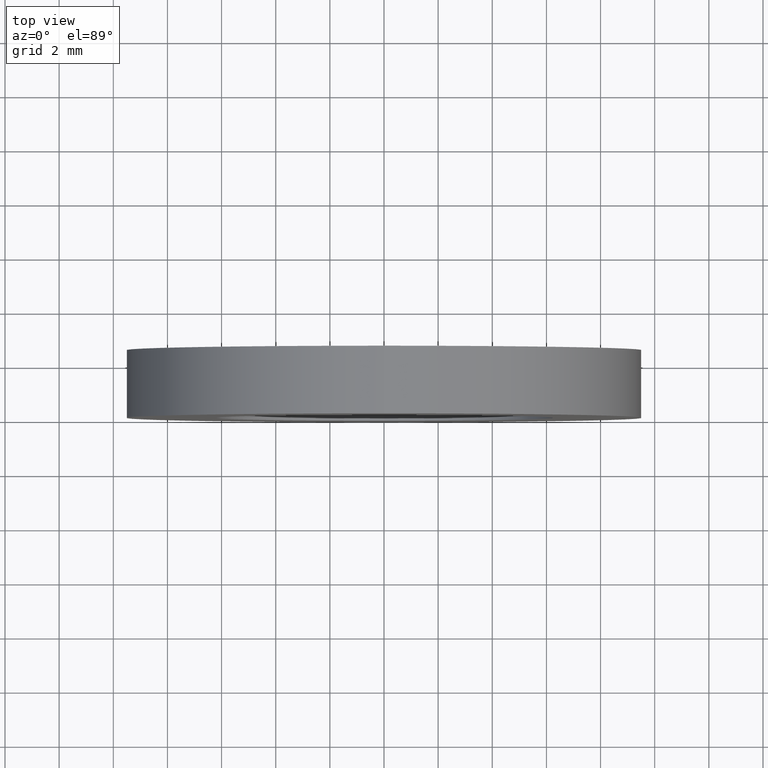
[diagram: clean part render]
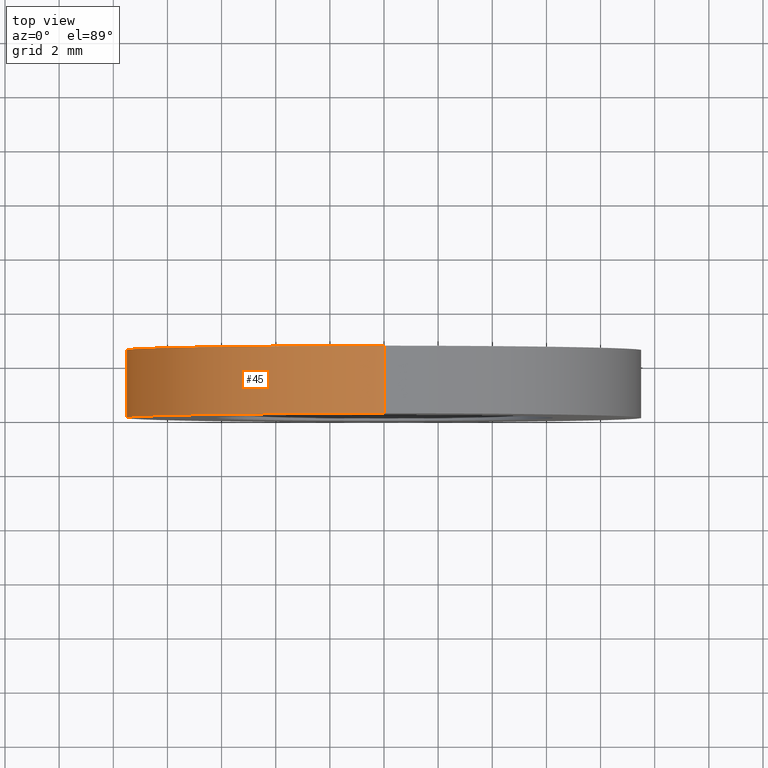
[diagram: same view with one face highlighted and labeled with its STEP entity id]
A machine part, top view. The second image highlights one B-rep face of the part: STEP entity #45.
In plain terms, the highlighted cylindrical surface (partial cylindrical patch) has radius 9.525 mm, axis along (-0, 1, -0).
Its self-contained STEP definition (entity closure, byte-faithful):
#1 = DIRECTION ( 'NONE',  ( 0.0000000000000000000, 0.0000000000000000000, 1.000000000000000000 ) ) ;
#7 = CARTESIAN_POINT ( 'NONE',  ( 1.166476076187855000E-015, 2.500000000000002200, -9.525000000000009200 ) ) ;
#8 = DIRECTION ( 'NONE',  ( 0.0000000000000000000, 0.0000000000000000000, 1.000000000000000000 ) ) ;
#9 = VERTEX_POINT ( 'NONE', #234 ) ;
#10 = CIRCLE ( 'NONE', #111, 9.525000000000009200 ) ;
#12 = VERTEX_POINT ( 'NONE', #137 ) ;
#14 = DIRECTION ( 'NONE',  ( 0.0000000000000000000, 0.0000000000000000000, 1.000000000000000000 ) ) ;
#18 = DIRECTION ( 'NONE',  ( -0.0000000000000000000, 1.000000000000000000, -0.0000000000000000000 ) ) ;
#22 = ORIENTED_EDGE ( 'NONE', *, *, #178, .T. ) ;
#33 = CYLINDRICAL_SURFACE ( 'NONE', #37, 9.525000000000009200 ) ;
#35 = DIRECTION ( 'NONE',  ( -0.0000000000000000000, 1.000000000000000000, -0.0000000000000000000 ) ) ;
#37 = AXIS2_PLACEMENT_3D ( 'NONE', #83, #100, #8 ) ;
#45 = ADVANCED_FACE ( 'NONE', ( #187 ), #33, .T. ) ;
#47 = DIRECTION ( 'NONE',  ( -0.0000000000000000000, 1.000000000000000000, -0.0000000000000000000 ) ) ;
#49 = ORIENTED_EDGE ( 'NONE', *, *, #192, .F. ) ;
#71 = CIRCLE ( 'NONE', #228, 9.525000000000009200 ) ;
#83 = CARTESIAN_POINT ( 'NONE',  ( 0.0000000000000000000, 77.14414226561778800, 0.0000000000000000000 ) ) ;
#97 = EDGE_CURVE ( 'NONE', #244, #183, #10, .T. ) ;
#100 = DIRECTION ( 'NONE',  ( -0.0000000000000000000, 1.000000000000000000, -0.0000000000000000000 ) ) ;
#102 = ORIENTED_EDGE ( 'NONE', *, *, #97, .F. ) ;
#111 = AXIS2_PLACEMENT_3D ( 'NONE', #239, #47, #14 ) ;
#117 = LINE ( 'NONE', #185, #199 ) ;
#136 = ORIENTED_EDGE ( 'NONE', *, *, #167, .T. ) ;
#137 = CARTESIAN_POINT ( 'NONE',  ( 0.0000000000000000000, 0.0000000000000000000, 9.525000000000009200 ) ) ;
#146 = CARTESIAN_POINT ( 'NONE',  ( 0.0000000000000000000, 77.14414226561778800, 9.525000000000009200 ) ) ;
#147 = DIRECTION ( 'NONE',  ( -0.0000000000000000000, 1.000000000000000000, -0.0000000000000000000 ) ) ;
#167 = EDGE_CURVE ( 'NONE', #12, #183, #176, .T. ) ;
#168 = CARTESIAN_POINT ( 'NONE',  ( 0.0000000000000000000, 2.500000000000002200, 9.525000000000009200 ) ) ;
#173 = VECTOR ( 'NONE', #147, 1000.000000000000000 ) ;
#176 = LINE ( 'NONE', #146, #173 ) ;
#178 = EDGE_CURVE ( 'NONE', #9, #12, #71, .T. ) ;
#183 = VERTEX_POINT ( 'NONE', #168 ) ;
#185 = CARTESIAN_POINT ( 'NONE',  ( 1.166476076187855000E-015, 77.14414226561778800, -9.525000000000009200 ) ) ;
#187 = FACE_OUTER_BOUND ( 'NONE', #212, .T. ) ;
#188 = CARTESIAN_POINT ( 'NONE',  ( 0.0000000000000000000, 0.0000000000000000000, 0.0000000000000000000 ) ) ;
#192 = EDGE_CURVE ( 'NONE', #9, #244, #117, .T. ) ;
#199 = VECTOR ( 'NONE', #18, 1000.000000000000000 ) ;
#212 = EDGE_LOOP ( 'NONE', ( #49, #22, #136, #102 ) ) ;
#228 = AXIS2_PLACEMENT_3D ( 'NONE', #188, #35, #1 ) ;
#234 = CARTESIAN_POINT ( 'NONE',  ( 1.166476076187855000E-015, 0.0000000000000000000, -9.525000000000009200 ) ) ;
#239 = CARTESIAN_POINT ( 'NONE',  ( 0.0000000000000000000, 2.500000000000002200, 0.0000000000000000000 ) ) ;
#244 = VERTEX_POINT ( 'NONE', #7 ) ;